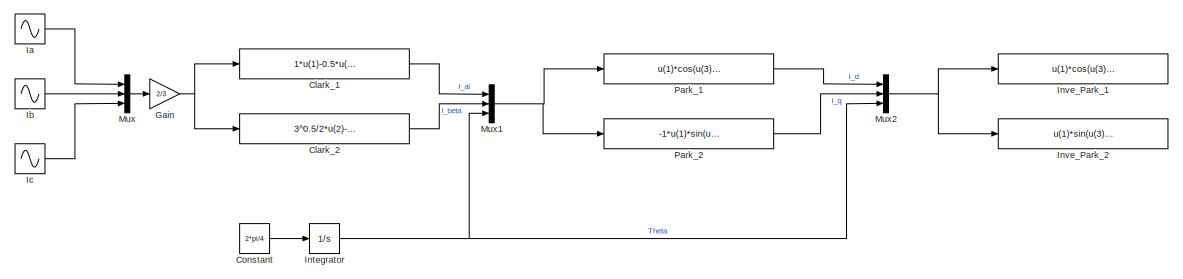
[diagram: root canvas - part 1/2, center side, full height]
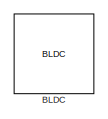
[diagram: root canvas - part 2/2, middle right region]
MODEL slx_6cbefd8f0655
KIND model
CONFIG AbsTol = auto
CONFIG EnableMultiTasking = off
CONFIG FixedStep = auto
CONFIG MaxStep = auto
CONFIG MinStep = auto
CONFIG RelTol = 1e-3
CONFIG SampleTimeConstraint = Unconstrained
CONFIG SolverName = VariableStepAuto
CONFIG StartTime = 0.0
CONFIG StopTime = 10.0
BLOCK [Reference] BLDC  REF=ee_lib/Electromechanical/Permanent Magnet/BLDC
  Commented = on
  SourceBlock = ee_lib/Electromechanical/Permanent Magnet/BLDC
  SourceType = BLDC
BLOCK [Fcn] Clark_1
  Expr = 1*u(1)-0.5*u(2)-0.5*u(3)
BLOCK [Fcn] Clark_2
  Expr = 3^0.5/2*u(2)-3^0.5/2*u(3)
BLOCK [Constant] Constant
  Value = 2*pi/4
BLOCK [Gain] Gain
  Gain = 2/3
BLOCK [Sin] Ia
  Frequency = 2*pi/4
  Phase = 0+pi/2
  SampleTime = 0
BLOCK [Sin] Ib
  Frequency = 2*pi/4
  Phase = -2*pi/3+pi/2
  SampleTime = 0
BLOCK [Sin] Ic
  Frequency = 2*pi/4
  Phase = +2*pi/3+pi/2
  SampleTime = 0
BLOCK [Integrator] Integrator
BLOCK [Fcn] Inve_Park_1
  Expr = u(1)*cos(u(3))-u(2)*sin(u(3))
BLOCK [Fcn] Inve_Park_2
  Expr = u(1)*sin(u(3))+u(2)*cos(u(3))
BLOCK [Mux] Mux
  DisplayOption = bar
  Inputs = 3
BLOCK [Mux] Mux1
  DisplayOption = bar
  Inputs = 3
BLOCK [Mux] Mux2
  DisplayOption = bar
  Inputs = 3
BLOCK [Fcn] Park_1
  Expr = u(1)*cos(u(3))+u(2)*sin(u(3))
BLOCK [Fcn] Park_2
  Expr = -1*u(1)*sin(u(3))+u(2)*cos(u(3))
LINE Clark_1:1 -> Mux1:1
LINE Clark_2:1 -> Mux1:2
LINE Constant:1 -> Integrator:1
NET Gain:1 -> Clark_1:1, Clark_2:1
LINE Ia:1 -> Mux:1
LINE Ib:1 -> Mux:2
LINE Ic:1 -> Mux:3
NET Integrator:1 -> Mux1:3, Mux2:3
NET Mux1:1 -> Park_1:1, Park_2:1
NET Mux2:1 -> Inve_Park_1:1, Inve_Park_2:1
LINE Mux:1 -> Gain:1
LINE Park_1:1 -> Mux2:1
LINE Park_2:1 -> Mux2:2
note: NET lines group one-source signal fan-out (src -> all destinations, sorted); 1:1 wires keep LINE
